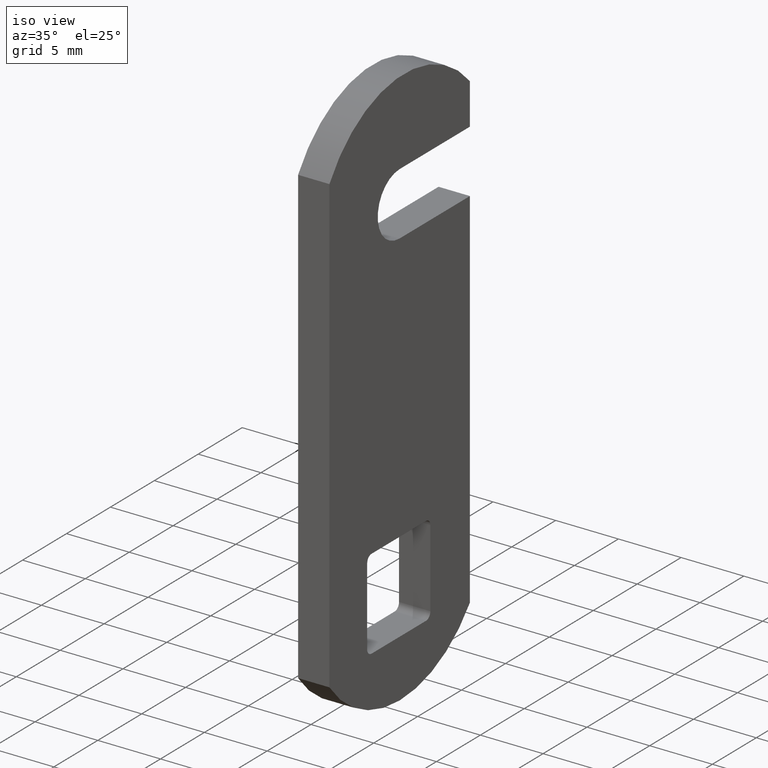
[diagram: clean part render]
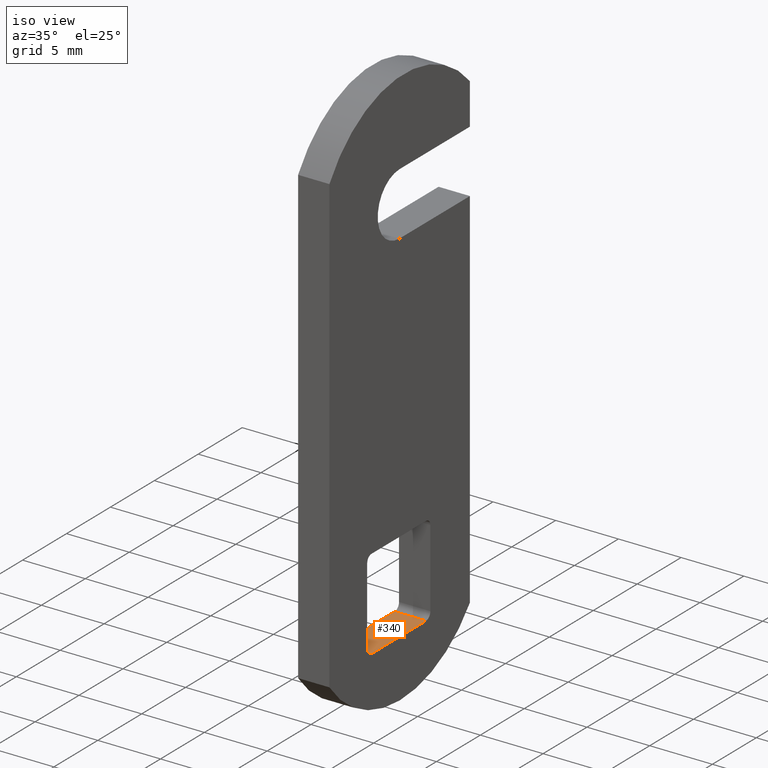
[diagram: same view with one face highlighted and labeled with its STEP entity id]
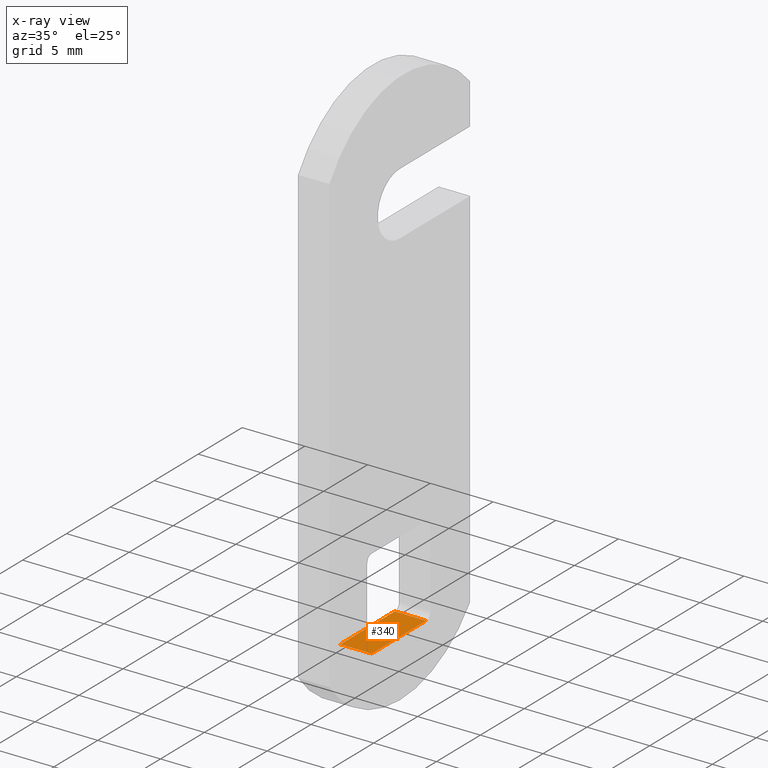
[diagram: x-ray of the same camera — body ghosted, the highlighted face saturated]
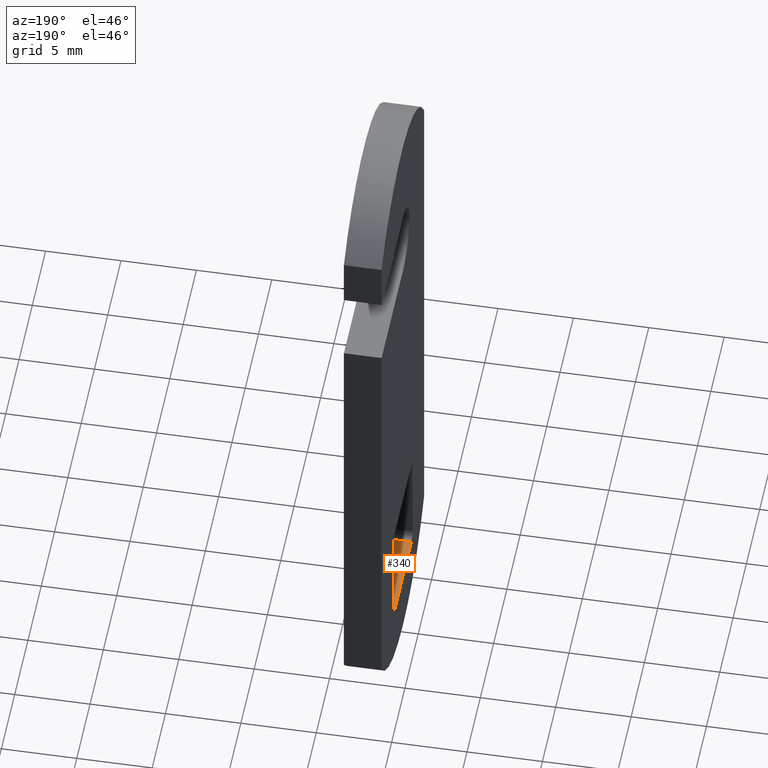
[diagram: same view with one face highlighted and labeled with its STEP entity id]
A machine part, iso view. The second image highlights one B-rep face of the part: STEP entity #340.
The next image is the same camera in x-ray: the body ghosted, the highlighted face saturated — about 0% of this face is hidden behind the body in this view.
A second angle (auxiliary view) of the same face is appended — the face is thin or edge-on in the first view.
In plain terms, the highlighted planar face has unit normal (0, 0, 1).
Its self-contained STEP definition (entity closure, byte-faithful):
#47=FACE_OUTER_BOUND('',#66,.T.);
#66=EDGE_LOOP('',(#272,#273,#274,#275));
#91=LINE('',#525,#125);
#98=LINE('',#552,#132);
#99=LINE('',#553,#133);
#100=LINE('',#554,#134);
#125=VECTOR('',#420,6.19999999999999);
#132=VECTOR('',#447,6.19999999999999);
#133=VECTOR('',#448,2.5);
#134=VECTOR('',#449,2.5);
#158=VERTEX_POINT('',#523);
#159=VERTEX_POINT('',#524);
#168=VERTEX_POINT('',#550);
#169=VERTEX_POINT('',#551);
#195=EDGE_CURVE('',#158,#159,#91,.T.);
#208=EDGE_CURVE('',#168,#169,#98,.T.);
#209=EDGE_CURVE('',#169,#159,#99,.T.);
#210=EDGE_CURVE('',#168,#158,#100,.T.);
#272=ORIENTED_EDGE('',*,*,#208,.T.);
#273=ORIENTED_EDGE('',*,*,#209,.T.);
#274=ORIENTED_EDGE('',*,*,#195,.F.);
#275=ORIENTED_EDGE('',*,*,#210,.F.);
#326=PLANE('',#370);
#340=ADVANCED_FACE('',(#47),#326,.T.);
#370=AXIS2_PLACEMENT_3D('',#549,#445,#446);
#420=DIRECTION('',(0.,1.,0.));
#445=DIRECTION('center_axis',(0.,0.,1.));
#446=DIRECTION('ref_axis',(1.,0.,0.));
#447=DIRECTION('',(0.,1.,0.));
#448=DIRECTION('',(-1.,0.,0.));
#449=DIRECTION('',(-1.,0.,0.));
#523=CARTESIAN_POINT('',(-34.0000000687006,-3.10000000000002,-3.6));
#524=CARTESIAN_POINT('',(-34.0000000687006,3.09999999999997,-3.6));
#525=CARTESIAN_POINT('',(-34.0000000687006,-3.10000000000002,-3.6));
#549=CARTESIAN_POINT('Origin',(-31.5000000687006,-3.10000000000002,-3.6));
#550=CARTESIAN_POINT('',(-31.5000000687006,-3.10000000000002,-3.6));
#551=CARTESIAN_POINT('',(-31.5000000687006,3.09999999999997,-3.6));
#552=CARTESIAN_POINT('',(-31.5000000687006,-3.10000000000002,-3.6));
#553=CARTESIAN_POINT('',(-31.5000000687006,3.09999999999997,-3.6));
#554=CARTESIAN_POINT('',(-31.5000000687006,-3.10000000000002,-3.6));